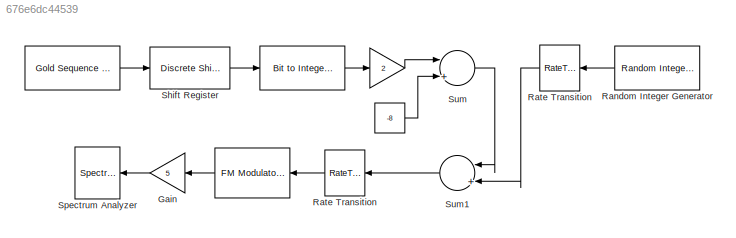
MODEL slx_676e6dc44539
KIND model
BLOCK [Reference]    REF=commseqgen2/Gold Sequence
Generator
  Ports = [0, 1]
  SourceBlock = commseqgen2/Gold Sequence\nGenerator
  SourceType = Gold Sequence Generator
  frameBased = off
  genPoly1 = [1 0 0 1 0 1]
  genPoly2 = [1 1 1 1 0 1]
  index = 0
  iniState1 = [1 1 1 0 1]
  iniState2 = [1 0 0 0 1]
  maxOutSize = [10 1]
  maxOutSizeMode = Dialog parameter
  outDataType = double
  outVarSiz = off
  reset = off
  sampPerFrame = 1
  shift = 0
  ts = 5e-5
BLOCK [Reference]     REF=commutil2/Bit to Integer
Converter
  Ports = [1, 1]
  SourceBlock = commutil2/Bit to Integer\nConverter
  SourceType = Bit to Integer Converter
  bitOrder = MSB first
  nbits = 3
  outDtype = Inherit via internal rule
  outDtypeSigned = Inherit via internal rule
  signedOutputValues = Unsigned
BLOCK [Gain]    
  Gain = 2
  OutDataTypeStr = Inherit: Inherit via internal rule
  ParamDataTypeStr = Inherit: Inherit via internal rule
  SaturateOnIntegerOverflow = off
BLOCK [Constant]     
  Value = -8
BLOCK [Reference]           REF=commanapbnd3/FM
Modulator
Passband
  Fc = 100000
  Kc = 5000
  Ph = 0
  Ports = [1, 1]
  SourceBlock = commanapbnd3/FM\nModulator\nPassband
  SourceType = FM Modulator Passband
BLOCK [Gain] Gain
  Gain = 5
  OutDataTypeStr = Inherit: Inherit via internal rule
  ParamDataTypeStr = Inherit: Inherit via internal rule
  SaturateOnIntegerOverflow = off
BLOCK [Reference] Random Integer Generator  REF=commrandsrc2/Random Integer
Generator
  Ports = [0, 1]
  SourceBlock = commrandsrc2/Random Integer\nGenerator
  SourceType = Random Integer Generator
  Ts = 1e-3
  frameBased = off
  mul = 2
  orient = on
  outDataType = double
  sampPerFrame = 50
  seed = randseed
BLOCK [RateTransition] Rate Transition
  OutPortSampleTime = 5e-5
BLOCK [Reference] Shift Register  REF=powerlib_meascontrol/Additional Components/Discrete
Shift Register
  InitialValue = 0
  NSamples = 3
  Ports = [1, 1]
  SourceBlock = powerlib_meascontrol/Additional Components/Discrete\nShift Register
  SourceType = Discrete Shift Register
  Ts = 5e-5
BLOCK [SpectrumAnalyzer] Spectrum Analyzer
  Ports = [1]
  ScopeSpecificationString = spbscopes.SpectrumAnalyzerBlockCfg('CurrentConfiguration', extmgr.ConfigurationSet(extmgr.Configuration('Core','General UI',true,'FigureColor',[0.313725490196078 0.313725490196078 0.313725490196078]),extmgr.Configuration('Core','Source UI',true),extmgr.Configuration('Sources','WiredSimulink',true),extmgr.Configuration('Sources','Simulink',false),extmgr.Configuration('Sources','File',false),extmgr....<+7017ch>
BLOCK [Sum] Sum
  InputSameDT = off
  Inputs = |++
  OutDataTypeStr = Inherit: Inherit via internal rule
  Ports = [2, 1]
  SaturateOnIntegerOverflow = off
BLOCK [Sum] Sum1
  InputSameDT = off
  Inputs = |++
  OutDataTypeStr = Inherit: Inherit via internal rule
  Ports = [2, 1]
  SaturateOnIntegerOverflow = off
LINE         :1 -> Gain:1
LINE     :1 -> Sum:2
LINE    :1 -> Sum:1
LINE   :1 ->    :1
LINE  :1 -> Shift Register:1
LINE Gain:1 -> Spectrum Analyzer:1
LINE Random Integer Generator:1 -> Rate Transition:1
NET Rate Transition:1 ->         :1, Sum1:2
LINE Shift Register:1 ->   :1
LINE Sum1:1 -> Rate Transition:1
LINE Sum:1 -> Sum1:1
note: NET lines group one-source signal fan-out (src -> all destinations, sorted); 1:1 wires keep LINE
